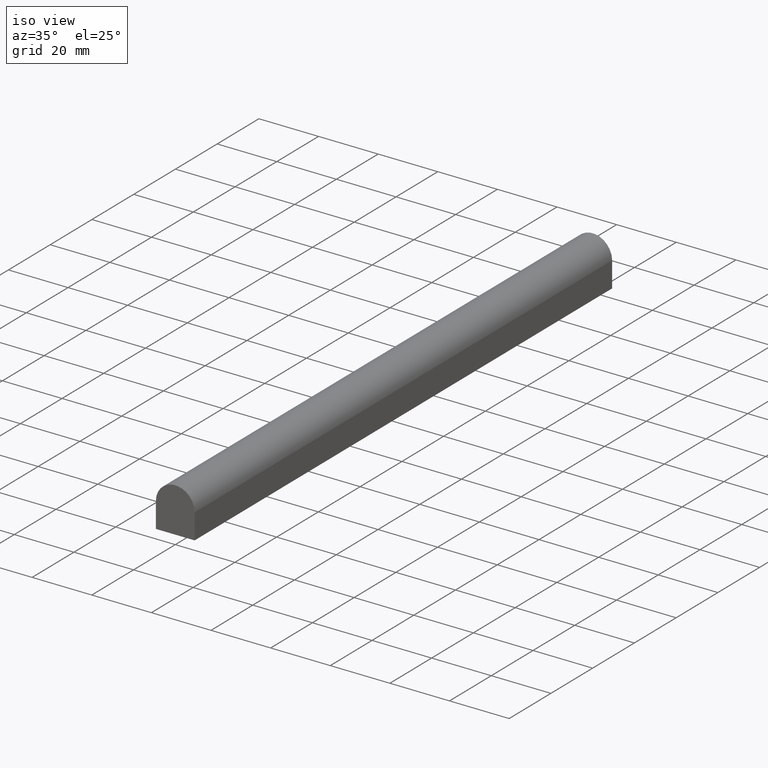
[diagram: clean part render]
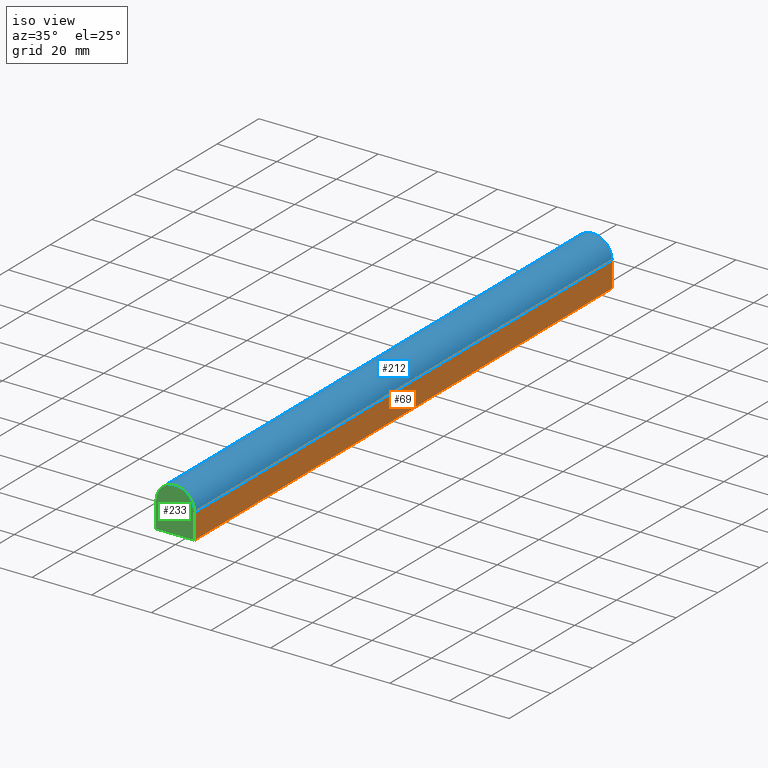
[diagram: same view with three faces highlighted in distinct colors, each labeled with its STEP entity id]
A machine part, iso view with three faces highlighted in distinct colors.
Their STEP definitions:

[orange] entity #69 — the highlighted planar face has unit normal (1, 0, 0).
#4 = VECTOR ( 'NONE', #9, 1000.000000000000000 ) ;
#9 = DIRECTION ( 'NONE',  ( -0.0000000000000000000, -0.0000000000000000000, 1.000000000000000000 ) ) ;
#10 = EDGE_CURVE ( 'NONE', #21, #200, #40, .T. ) ;
#21 = VERTEX_POINT ( 'NONE', #194 ) ;
#28 = CARTESIAN_POINT ( 'NONE',  ( 6.500000000000000000, 1000.000000000000000, -7.500000000000000000 ) ) ;
#30 = CARTESIAN_POINT ( 'NONE',  ( 6.500000000000000000, 1000.000000000000000, 1.000000000000000000 ) ) ;
#35 = CARTESIAN_POINT ( 'NONE',  ( 6.500000000000000000, 200.0000000000000000, 1.000000000000000000 ) ) ;
#40 = LINE ( 'NONE', #164, #157 ) ;
#48 = DIRECTION ( 'NONE',  ( 0.0000000000000000000, 0.0000000000000000000, -1.000000000000000000 ) ) ;
#65 = LINE ( 'NONE', #133, #204 ) ;
#69 = ADVANCED_FACE ( 'NONE', ( #211 ), #74, .T. ) ;
#74 = PLANE ( 'NONE',  #183 ) ;
#76 = CARTESIAN_POINT ( 'NONE',  ( 6.500000000000000000, 0.0000000000000000000, 0.0000000000000000000 ) ) ;
#81 = DIRECTION ( 'NONE',  ( -0.0000000000000000000, -0.0000000000000000000, 1.000000000000000000 ) ) ;
#85 = EDGE_CURVE ( 'NONE', #188, #146, #153, .T. ) ;
#107 = ORIENTED_EDGE ( 'NONE', *, *, #85, .F. ) ;
#112 = CARTESIAN_POINT ( 'NONE',  ( 6.500000000000000000, 0.0000000000000000000, 1.000000000000000000 ) ) ;
#131 = EDGE_CURVE ( 'NONE', #200, #146, #161, .T. ) ;
#133 = CARTESIAN_POINT ( 'NONE',  ( 6.500000000000000000, 1000.000000000000000, -7.500000000000000000 ) ) ;
#136 = DIRECTION ( 'NONE',  ( 0.0000000000000000000, -1.000000000000000000, 0.0000000000000000000 ) ) ;
#142 = ORIENTED_EDGE ( 'NONE', *, *, #10, .T. ) ;
#146 = VERTEX_POINT ( 'NONE', #112 ) ;
#153 = LINE ( 'NONE', #76, #4 ) ;
#154 = ORIENTED_EDGE ( 'NONE', *, *, #131, .T. ) ;
#156 = VECTOR ( 'NONE', #205, 1000.000000000000000 ) ;
#157 = VECTOR ( 'NONE', #81, 1000.000000000000000 ) ;
#161 = LINE ( 'NONE', #30, #156 ) ;
#164 = CARTESIAN_POINT ( 'NONE',  ( 6.500000000000000000, 200.0000000000000000, 0.0000000000000000000 ) ) ;
#165 = EDGE_LOOP ( 'NONE', ( #107, #240, #142, #154 ) ) ;
#177 = EDGE_CURVE ( 'NONE', #21, #188, #65, .T. ) ;
#183 = AXIS2_PLACEMENT_3D ( 'NONE', #28, #203, #48 ) ;
#188 = VERTEX_POINT ( 'NONE', #224 ) ;
#194 = CARTESIAN_POINT ( 'NONE',  ( 6.500000000000000000, 200.0000000000000000, -7.500000000000000000 ) ) ;
#200 = VERTEX_POINT ( 'NONE', #35 ) ;
#203 = DIRECTION ( 'NONE',  ( 1.000000000000000000, 0.0000000000000000000, 0.0000000000000000000 ) ) ;
#204 = VECTOR ( 'NONE', #136, 1000.000000000000000 ) ;
#205 = DIRECTION ( 'NONE',  ( 0.0000000000000000000, -1.000000000000000000, 0.0000000000000000000 ) ) ;
#211 = FACE_OUTER_BOUND ( 'NONE', #165, .T. ) ;
#224 = CARTESIAN_POINT ( 'NONE',  ( 6.500000000000000000, 0.0000000000000000000, -7.500000000000000000 ) ) ;
#240 = ORIENTED_EDGE ( 'NONE', *, *, #177, .F. ) ;

[blue] entity #212 — the highlighted cylindrical surface (edge-blend (fillet) strip) has radius 6.5 mm, axis along (0, -1, 0).
#8 = DIRECTION ( 'NONE',  ( 0.0000000000000000000, -1.000000000000000000, 0.0000000000000000000 ) ) ;
#11 = DIRECTION ( 'NONE',  ( 0.0000000000000000000, -1.000000000000000000, 0.0000000000000000000 ) ) ;
#24 = CARTESIAN_POINT ( 'NONE',  ( -6.500000000000000000, 200.0000000000000000, 1.000000000000000000 ) ) ;
#30 = CARTESIAN_POINT ( 'NONE',  ( 6.500000000000000000, 1000.000000000000000, 1.000000000000000000 ) ) ;
#35 = CARTESIAN_POINT ( 'NONE',  ( 6.500000000000000000, 200.0000000000000000, 1.000000000000000000 ) ) ;
#49 = ORIENTED_EDGE ( 'NONE', *, *, #131, .F. ) ;
#50 = CARTESIAN_POINT ( 'NONE',  ( -6.500000000000000000, 0.0000000000000000000, 1.000000000000000000 ) ) ;
#52 = EDGE_CURVE ( 'NONE', #200, #63, #104, .T. ) ;
#55 = ORIENTED_EDGE ( 'NONE', *, *, #59, .F. ) ;
#59 = EDGE_CURVE ( 'NONE', #146, #111, #158, .T. ) ;
#60 = DIRECTION ( 'NONE',  ( -0.0000000000000000000, -1.000000000000000000, -0.0000000000000000000 ) ) ;
#62 = DIRECTION ( 'NONE',  ( -0.0000000000000000000, -1.000000000000000000, -0.0000000000000000000 ) ) ;
#63 = VERTEX_POINT ( 'NONE', #24 ) ;
#71 = VECTOR ( 'NONE', #8, 1000.000000000000000 ) ;
#77 = CARTESIAN_POINT ( 'NONE',  ( 0.0000000000000000000, 0.0000000000000000000, 1.000000000000000000 ) ) ;
#97 = CARTESIAN_POINT ( 'NONE',  ( 0.0000000000000000000, 200.0000000000000000, 1.000000000000000000 ) ) ;
#104 = CIRCLE ( 'NONE', #127, 6.500000000000000000 ) ;
#109 = FACE_OUTER_BOUND ( 'NONE', #144, .T. ) ;
#111 = VERTEX_POINT ( 'NONE', #50 ) ;
#112 = CARTESIAN_POINT ( 'NONE',  ( 6.500000000000000000, 0.0000000000000000000, 1.000000000000000000 ) ) ;
#113 = EDGE_CURVE ( 'NONE', #63, #111, #114, .T. ) ;
#114 = LINE ( 'NONE', #206, #71 ) ;
#127 = AXIS2_PLACEMENT_3D ( 'NONE', #97, #60, #185 ) ;
#131 = EDGE_CURVE ( 'NONE', #200, #146, #161, .T. ) ;
#139 = CARTESIAN_POINT ( 'NONE',  ( 0.0000000000000000000, 1000.000000000000000, 1.000000000000000000 ) ) ;
#144 = EDGE_LOOP ( 'NONE', ( #55, #49, #179, #195 ) ) ;
#146 = VERTEX_POINT ( 'NONE', #112 ) ;
#156 = VECTOR ( 'NONE', #205, 1000.000000000000000 ) ;
#158 = CIRCLE ( 'NONE', #189, 6.500000000000000000 ) ;
#161 = LINE ( 'NONE', #30, #156 ) ;
#166 = DIRECTION ( 'NONE',  ( 0.0000000000000000000, 0.0000000000000000000, 1.000000000000000000 ) ) ;
#178 = CYLINDRICAL_SURFACE ( 'NONE', #223, 6.500000000000000000 ) ;
#179 = ORIENTED_EDGE ( 'NONE', *, *, #52, .T. ) ;
#185 = DIRECTION ( 'NONE',  ( 0.0000000000000000000, 0.0000000000000000000, 1.000000000000000000 ) ) ;
#189 = AXIS2_PLACEMENT_3D ( 'NONE', #77, #62, #166 ) ;
#195 = ORIENTED_EDGE ( 'NONE', *, *, #113, .T. ) ;
#200 = VERTEX_POINT ( 'NONE', #35 ) ;
#205 = DIRECTION ( 'NONE',  ( 0.0000000000000000000, -1.000000000000000000, 0.0000000000000000000 ) ) ;
#206 = CARTESIAN_POINT ( 'NONE',  ( -6.500000000000000000, 1000.000000000000000, 1.000000000000000000 ) ) ;
#212 = ADVANCED_FACE ( 'NONE', ( #109 ), #178, .T. ) ;
#223 = AXIS2_PLACEMENT_3D ( 'NONE', #139, #11, #232 ) ;
#232 = DIRECTION ( 'NONE',  ( 0.0000000000000000000, 0.0000000000000000000, -1.000000000000000000 ) ) ;

[green] entity #233 — the highlighted planar face has unit normal (0, 1, 0).
#4 = VECTOR ( 'NONE', #9, 1000.000000000000000 ) ;
#6 = VERTEX_POINT ( 'NONE', #132 ) ;
#9 = DIRECTION ( 'NONE',  ( -0.0000000000000000000, -0.0000000000000000000, 1.000000000000000000 ) ) ;
#27 = LINE ( 'NONE', #192, #167 ) ;
#50 = CARTESIAN_POINT ( 'NONE',  ( -6.500000000000000000, 0.0000000000000000000, 1.000000000000000000 ) ) ;
#57 = ORIENTED_EDGE ( 'NONE', *, *, #123, .T. ) ;
#59 = EDGE_CURVE ( 'NONE', #146, #111, #158, .T. ) ;
#62 = DIRECTION ( 'NONE',  ( -0.0000000000000000000, -1.000000000000000000, -0.0000000000000000000 ) ) ;
#76 = CARTESIAN_POINT ( 'NONE',  ( 6.500000000000000000, 0.0000000000000000000, 0.0000000000000000000 ) ) ;
#77 = CARTESIAN_POINT ( 'NONE',  ( 0.0000000000000000000, 0.0000000000000000000, 1.000000000000000000 ) ) ;
#82 = DIRECTION ( 'NONE',  ( -0.0000000000000000000, -0.0000000000000000000, -1.000000000000000000 ) ) ;
#85 = EDGE_CURVE ( 'NONE', #188, #146, #153, .T. ) ;
#87 = ORIENTED_EDGE ( 'NONE', *, *, #85, .T. ) ;
#89 = EDGE_LOOP ( 'NONE', ( #57, #87, #218, #202 ) ) ;
#98 = CARTESIAN_POINT ( 'NONE',  ( -6.500000000000000000, 0.0000000000000000000, 0.0000000000000000000 ) ) ;
#101 = DIRECTION ( 'NONE',  ( -0.0000000000000000000, 1.000000000000000000, 0.0000000000000000000 ) ) ;
#105 = EDGE_CURVE ( 'NONE', #111, #6, #219, .T. ) ;
#111 = VERTEX_POINT ( 'NONE', #50 ) ;
#112 = CARTESIAN_POINT ( 'NONE',  ( 6.500000000000000000, 0.0000000000000000000, 1.000000000000000000 ) ) ;
#116 = DIRECTION ( 'NONE',  ( 1.000000000000000000, -0.0000000000000000000, -0.0000000000000000000 ) ) ;
#123 = EDGE_CURVE ( 'NONE', #6, #188, #27, .T. ) ;
#132 = CARTESIAN_POINT ( 'NONE',  ( -6.500000000000000000, 0.0000000000000000000, -7.500000000000000000 ) ) ;
#146 = VERTEX_POINT ( 'NONE', #112 ) ;
#152 = DIRECTION ( 'NONE',  ( 1.000000000000000000, 0.0000000000000000000, 0.0000000000000000000 ) ) ;
#153 = LINE ( 'NONE', #76, #4 ) ;
#158 = CIRCLE ( 'NONE', #189, 6.500000000000000000 ) ;
#166 = DIRECTION ( 'NONE',  ( 0.0000000000000000000, 0.0000000000000000000, 1.000000000000000000 ) ) ;
#167 = VECTOR ( 'NONE', #116, 1000.000000000000000 ) ;
#173 = PLANE ( 'NONE',  #237 ) ;
#182 = FACE_OUTER_BOUND ( 'NONE', #89, .T. ) ;
#188 = VERTEX_POINT ( 'NONE', #224 ) ;
#189 = AXIS2_PLACEMENT_3D ( 'NONE', #77, #62, #166 ) ;
#192 = CARTESIAN_POINT ( 'NONE',  ( 0.0000000000000000000, 0.0000000000000000000, -7.500000000000000000 ) ) ;
#202 = ORIENTED_EDGE ( 'NONE', *, *, #105, .T. ) ;
#210 = CARTESIAN_POINT ( 'NONE',  ( 0.0000000000000000000, 0.0000000000000000000, 0.0000000000000000000 ) ) ;
#213 = VECTOR ( 'NONE', #82, 1000.000000000000000 ) ;
#218 = ORIENTED_EDGE ( 'NONE', *, *, #59, .T. ) ;
#219 = LINE ( 'NONE', #98, #213 ) ;
#224 = CARTESIAN_POINT ( 'NONE',  ( 6.500000000000000000, 0.0000000000000000000, -7.500000000000000000 ) ) ;
#233 = ADVANCED_FACE ( 'NONE', ( #182 ), #173, .F. ) ;
#237 = AXIS2_PLACEMENT_3D ( 'NONE', #210, #101, #152 ) ;